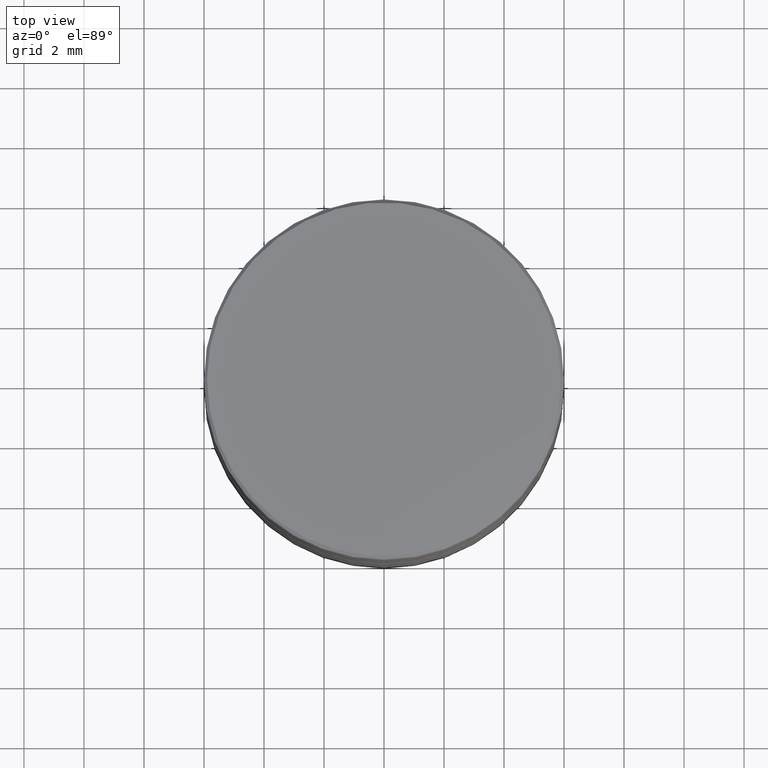
[diagram: clean part render]
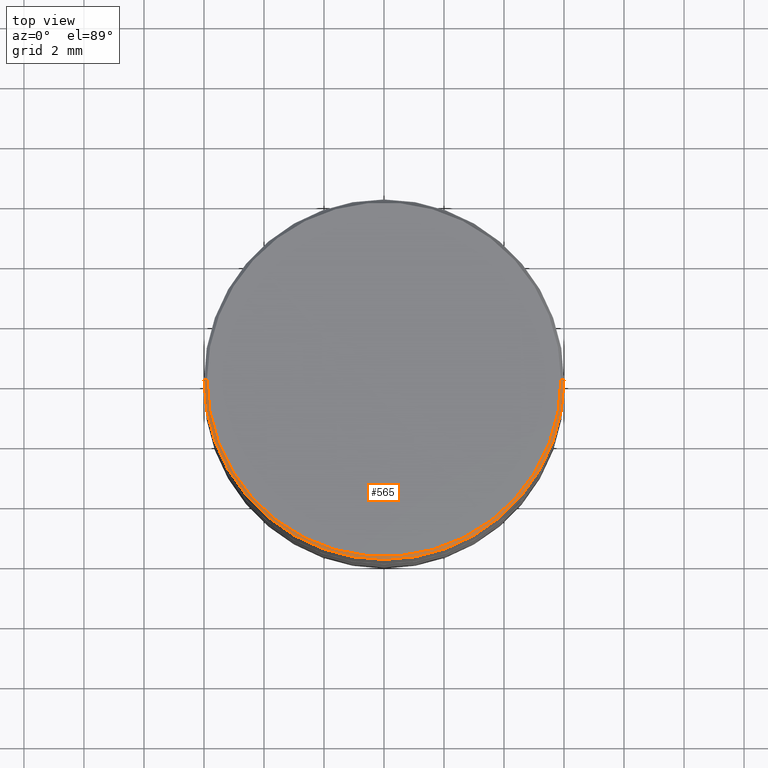
[diagram: same view with one face highlighted and labeled with its STEP entity id]
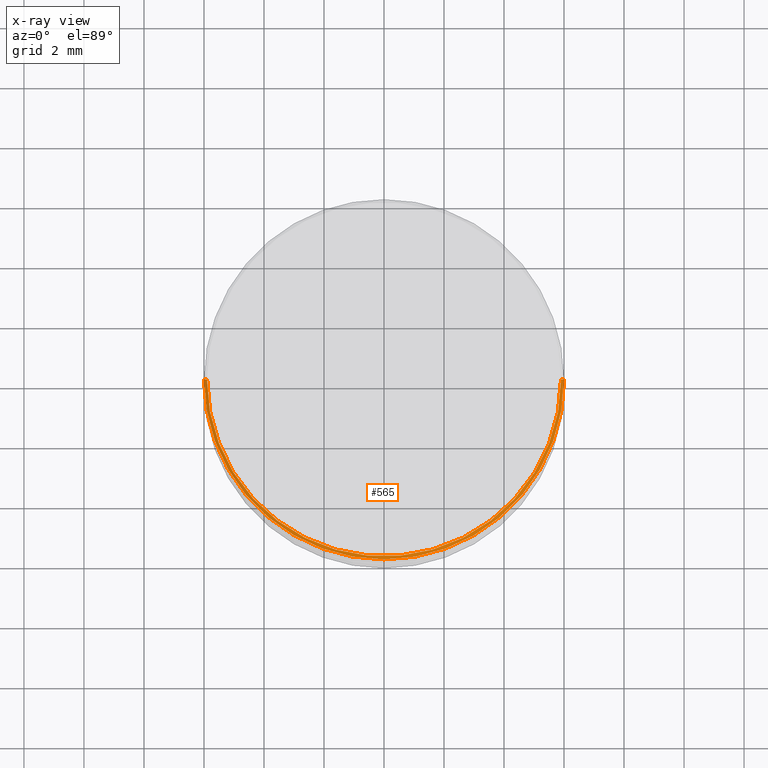
[diagram: x-ray of the same camera — body ghosted, the highlighted face saturated]
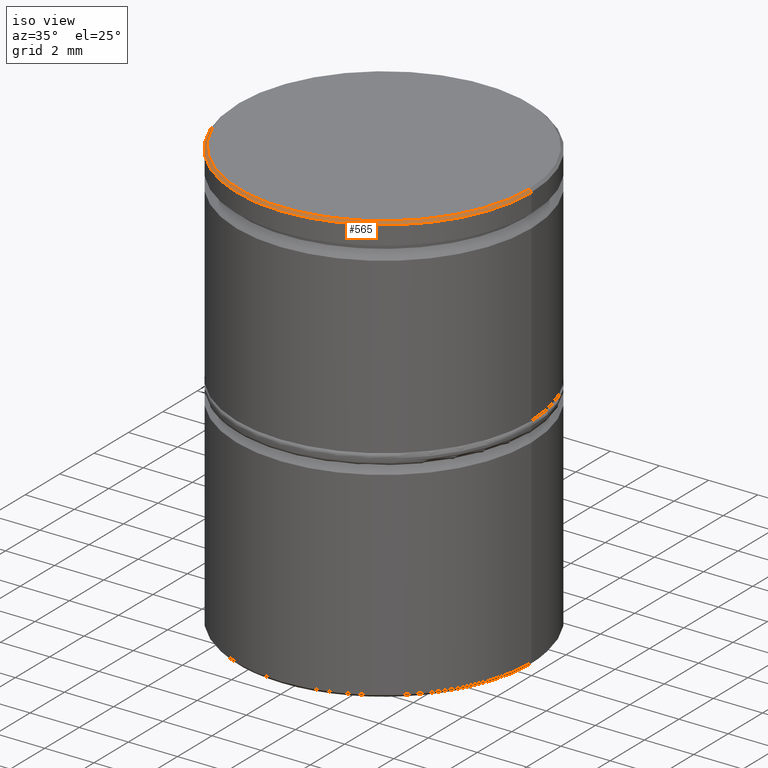
[diagram: same view with one face highlighted and labeled with its STEP entity id]
A machine part, top view. The second image highlights one B-rep face of the part: STEP entity #565.
The next image is the same camera in x-ray: the body ghosted, the highlighted face saturated — about 0% of this face is hidden behind the body in this view.
A second angle (iso view) of the same face is appended — the face is thin or edge-on in the first view.
In plain terms, the highlighted conical surface has half-angle 45 deg.
Its self-contained STEP definition (entity closure, byte-faithful):
#4 = CARTESIAN_POINT ( 'NONE',  ( 0.000000000000000000, 0.000000000000000000, 0.000000000000000000 ) ) ;
#15 = EDGE_CURVE ( 'NONE', #237, #76, #610, .T. ) ;
#20 = CARTESIAN_POINT ( 'NONE',  ( -5.900000000000002132, 0.000000000000000000, 0.000000000000000000 ) ) ;
#21 = DIRECTION ( 'NONE',  ( -0.7071067811865444641, 0.000000000000000000, -0.7071067811865505703 ) ) ;
#35 = DIRECTION ( 'NONE',  ( 0.000000000000000000, 0.000000000000000000, -1.000000000000000000 ) ) ;
#51 = DIRECTION ( 'NONE',  ( 1.000000000000000000, 0.000000000000000000, 0.000000000000000000 ) ) ;
#76 = VERTEX_POINT ( 'NONE', #866 ) ;
#125 = DIRECTION ( 'NONE',  ( 0.7071067811865444641, 8.659560562354897113E-17, -0.7071067811865505703 ) ) ;
#176 = LINE ( 'NONE', #665, #433 ) ;
#192 = LINE ( 'NONE', #914, #726 ) ;
#215 = AXIS2_PLACEMENT_3D ( 'NONE', #4, #1034, #964 ) ;
#236 = FACE_OUTER_BOUND ( 'NONE', #711, .T. ) ;
#237 = VERTEX_POINT ( 'NONE', #616 ) ;
#384 = EDGE_CURVE ( 'NONE', #820, #76, #176, .T. ) ;
#420 = ORIENTED_EDGE ( 'NONE', *, *, #15, .F. ) ;
#433 = VECTOR ( 'NONE', #21, 1000.000000000000000 ) ;
#434 = ORIENTED_EDGE ( 'NONE', *, *, #384, .T. ) ;
#448 = EDGE_CURVE ( 'NONE', #970, #237, #192, .T. ) ;
#455 = ORIENTED_EDGE ( 'NONE', *, *, #752, .F. ) ;
#525 = DIRECTION ( 'NONE',  ( -1.000000000000000000, 0.000000000000000000, 0.000000000000000000 ) ) ;
#565 = ADVANCED_FACE ( 'NONE', ( #236 ), #891, .T. ) ;
#610 = CIRCLE ( 'NONE', #890, 6.000000000000000000 ) ;
#616 = CARTESIAN_POINT ( 'NONE',  ( 6.000000000000000000, 0.000000000000000000, -0.09999999999999852063 ) ) ;
#664 = CIRCLE ( 'NONE', #215, 5.900000000000002132 ) ;
#665 = CARTESIAN_POINT ( 'NONE',  ( -5.900000000000002132, 0.000000000000000000, 0.000000000000000000 ) ) ;
#711 = EDGE_LOOP ( 'NONE', ( #986, #455, #434, #420 ) ) ;
#726 = VECTOR ( 'NONE', #125, 1000.000000000000000 ) ;
#752 = EDGE_CURVE ( 'NONE', #820, #970, #664, .T. ) ;
#820 = VERTEX_POINT ( 'NONE', #20 ) ;
#826 = CARTESIAN_POINT ( 'NONE',  ( 5.900000000000002132, 7.286648454926752951E-16, 0.000000000000000000 ) ) ;
#839 = CARTESIAN_POINT ( 'NONE',  ( 0.000000000000000000, 0.000000000000000000, -0.09999999999999852063 ) ) ;
#866 = CARTESIAN_POINT ( 'NONE',  ( -6.000000000000000000, 7.347880794884119736E-16, -0.09999999999999852063 ) ) ;
#890 = AXIS2_PLACEMENT_3D ( 'NONE', #839, #35, #51 ) ;
#891 = CONICAL_SURFACE ( 'NONE', #1027, 5.900000000000002132, 0.7853981633974439491 ) ;
#914 = CARTESIAN_POINT ( 'NONE',  ( 5.900000000000002132, 7.225416114969386166E-16, 0.000000000000000000 ) ) ;
#918 = CARTESIAN_POINT ( 'NONE',  ( 0.000000000000000000, 0.000000000000000000, 0.000000000000000000 ) ) ;
#936 = DIRECTION ( 'NONE',  ( 0.000000000000000000, 0.000000000000000000, -1.000000000000000000 ) ) ;
#964 = DIRECTION ( 'NONE',  ( 1.000000000000000000, 0.000000000000000000, 0.000000000000000000 ) ) ;
#970 = VERTEX_POINT ( 'NONE', #826 ) ;
#986 = ORIENTED_EDGE ( 'NONE', *, *, #448, .F. ) ;
#1027 = AXIS2_PLACEMENT_3D ( 'NONE', #918, #936, #525 ) ;
#1034 = DIRECTION ( 'NONE',  ( -0.000000000000000000, -0.000000000000000000, 1.000000000000000000 ) ) ;